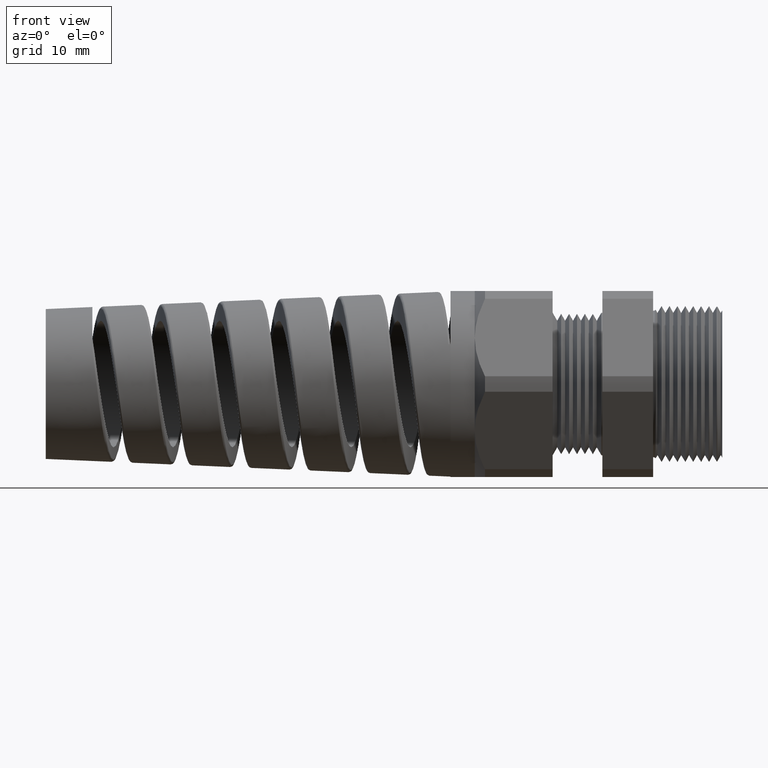
[diagram: clean part render]
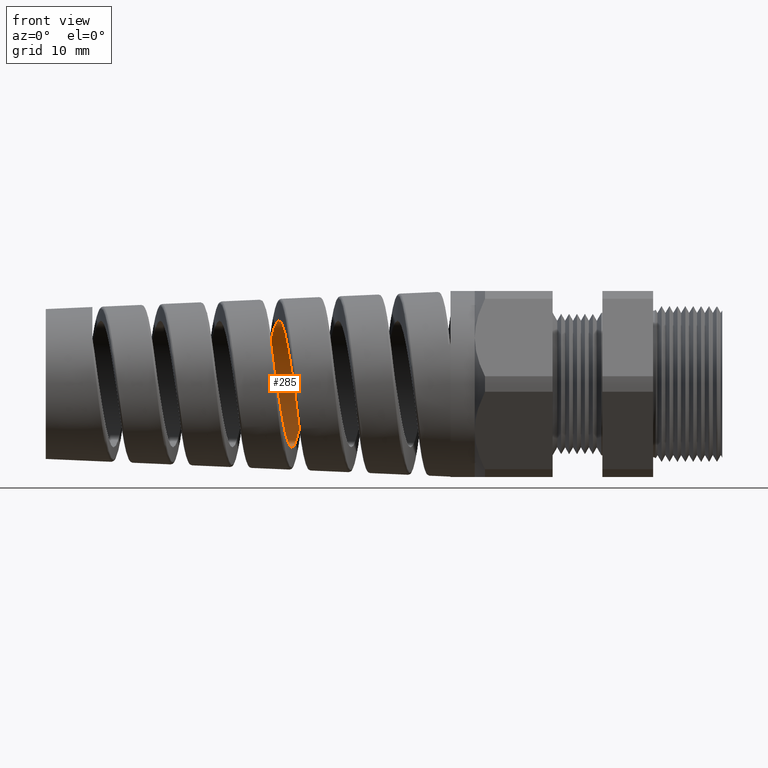
[diagram: same view with one face highlighted and labeled with its STEP entity id]
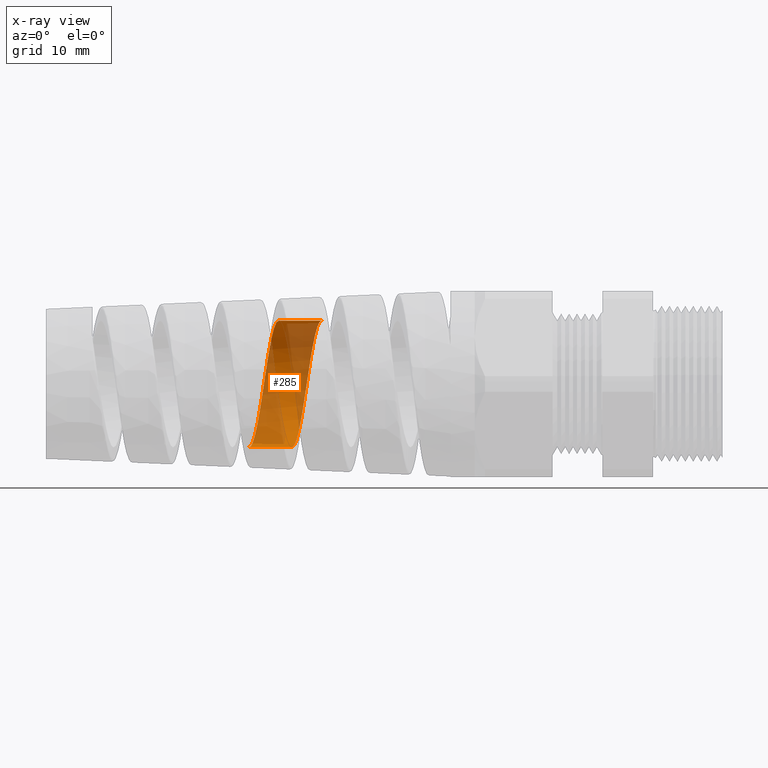
[diagram: x-ray of the same camera — body ghosted, the highlighted face saturated]
A machine part, front view. The second image highlights one B-rep face of the part: STEP entity #285.
The next image is the same camera in x-ray: the body ghosted, the highlighted face saturated — about 62% of this face is hidden behind the body in this view.
In plain terms, the highlighted cylindrical surface (partial cylindrical patch) has radius 8.128 mm, axis along (1, 0, 0).
Its self-contained STEP definition (entity closure, byte-faithful):
#201 = VERTEX_POINT ( 'NONE', #1259 ) ;
#203 = EDGE_CURVE ( 'NONE', #201, #204, #1258, .T. ) ;
#204 = VERTEX_POINT ( 'NONE', #1254 ) ;
#217 = VERTEX_POINT ( 'NONE', #1389 ) ;
#224 = VERTEX_POINT ( 'NONE', #1411 ) ;
#226 = EDGE_CURVE ( 'NONE', #217, #224, #1435, .T. ) ;
#285 = ADVANCED_FACE ( 'NONE', ( #1888 ), #1887, .F. ) ;
#286 = EDGE_LOOP ( 'NONE', ( #287, #288, #290, #291 ) ) ;
#287 = ORIENTED_EDGE ( 'NONE', *, *, #203, .F. ) ;
#288 = ORIENTED_EDGE ( 'NONE', *, *, #289, .T. ) ;
#289 = EDGE_CURVE ( 'NONE', #201, #217, #1882, .T. ) ;
#290 = ORIENTED_EDGE ( 'NONE', *, *, #226, .T. ) ;
#291 = ORIENTED_EDGE ( 'NONE', *, *, #292, .T. ) ;
#292 = EDGE_CURVE ( 'NONE', #224, #204, #1911, .T. ) ;
#1254 = CARTESIAN_POINT ( 'NONE',  ( -1.985614823771644400, 9.003637423056151700E-013, 0.3200000000000002300 ) ) ;
#1255 = DIRECTION ( 'NONE',  ( 1.000000000000000000, 0.0000000000000000000, 0.0000000000000000000 ) ) ;
#1256 = VECTOR ( 'NONE', #1255, 39.37007874015748100 ) ;
#1257 = CARTESIAN_POINT ( 'NONE',  ( 0.09602717987635048200, 3.918869757271530800E-017, 0.3200000000000000100 ) ) ;
#1258 = LINE ( 'NONE', #1257, #1256 ) ;
#1259 = CARTESIAN_POINT ( 'NONE',  ( -2.201809266588028900, 7.363184045423208900E-017, 0.3200000000000000100 ) ) ;
#1389 = CARTESIAN_POINT ( 'NONE',  ( -2.351741287611400100, -5.117743721287113500E-013, -0.3200000000000000100 ) ) ;
#1411 = CARTESIAN_POINT ( 'NONE',  ( -2.135681912372353200, -1.083967404298548900E-013, -0.3200000000000000100 ) ) ;
#1432 = DIRECTION ( 'NONE',  ( 1.000000000000000000, 0.0000000000000000000, 0.0000000000000000000 ) ) ;
#1433 = VECTOR ( 'NONE', #1432, 39.37007874015748100 ) ;
#1434 = CARTESIAN_POINT ( 'NONE',  ( 0.09602717987635048200, 0.0000000000000000000, -0.3200000000000000100 ) ) ;
#1435 = LINE ( 'NONE', #1434, #1433 ) ;
#1854 = CARTESIAN_POINT ( 'NONE',  ( -2.298655364093630000, 0.2875795537211594000, -0.1418951687187309200 ) ) ;
#1855 = CARTESIAN_POINT ( 'NONE',  ( -2.292425290302404900, 0.3035840422943751300, -0.1033100570534418400 ) ) ;
#1856 = CARTESIAN_POINT ( 'NONE',  ( -2.289261081846714100, 0.3097780678982575700, -0.08291527048113712900 ) ) ;
#1857 = CARTESIAN_POINT ( 'NONE',  ( -2.283020582004242600, 0.3179348800569378700, -0.04189039833802199500 ) ) ;
#1858 = CARTESIAN_POINT ( 'NONE',  ( -2.279925628624094100, 0.3199894198162194200, -0.02114087185396790500 ) ) ;
#1859 = CARTESIAN_POINT ( 'NONE',  ( -2.275233406194491400, 0.3200052295214768600, 0.01032929780641382100 ) ) ;
#1860 = CARTESIAN_POINT ( 'NONE',  ( -2.273652853139865200, 0.3194875552303220700, 0.02093102131605997800 ) ) ;
#1861 = CARTESIAN_POINT ( 'NONE',  ( -2.270519575714238200, 0.3174262804275462800, 0.04184449897315324600 ) ) ;
#1862 = CARTESIAN_POINT ( 'NONE',  ( -2.268962465094746400, 0.3158882327454267100, 0.05218583809731744400 ) ) ;
#1863 = CARTESIAN_POINT ( 'NONE',  ( -2.264297029910141900, 0.3097867189094129500, 0.08286819611366919000 ) ) ;
#1864 = CARTESIAN_POINT ( 'NONE',  ( -2.261195866489675400, 0.3037499908555568700, 0.1028709996223729600 ) ) ;
#1865 = CARTESIAN_POINT ( 'NONE',  ( -2.254890700167676800, 0.2875858163432165000, 0.1419186307229001500 ) ) ;
#1866 = CARTESIAN_POINT ( 'NONE',  ( -2.251782680679890600, 0.2776964857477125000, 0.1603727617178398700 ) ) ;
#1867 = CARTESIAN_POINT ( 'NONE',  ( -2.247119168800277800, 0.2603270785069944400, 0.1863826773614502000 ) ) ;
#1868 = CARTESIAN_POINT ( 'NONE',  ( -2.245563309092445600, 0.2541086917027857700, 0.1947792118303845700 ) ) ;
#1869 = CARTESIAN_POINT ( 'NONE',  ( -2.242433471816344800, 0.2407985745365067400, 0.2110123576034201900 ) ) ;
#1870 = CARTESIAN_POINT ( 'NONE',  ( -2.240852405460111600, 0.2336703710576541500, 0.2188799330988615600 ) ) ;
#1871 = CARTESIAN_POINT ( 'NONE',  ( -2.236154492140164600, 0.2113917954102257600, 0.2411526042313809100 ) ) ;
#1872 = CARTESIAN_POINT ( 'NONE',  ( -2.233059210915788700, 0.1952665380311733900, 0.2543772623685123200 ) ) ;
#1873 = CARTESIAN_POINT ( 'NONE',  ( -2.226822947255413100, 0.1605207152457300800, 0.2776146834405158700 ) ) ;
#1874 = CARTESIAN_POINT ( 'NONE',  ( -2.223657548163318500, 0.1417208406693229200, 0.2876663866665757900 ) ) ;
#1875 = CARTESIAN_POINT ( 'NONE',  ( -2.217425045264848700, 0.1031029427696981800, 0.3036552813472077100 ) ) ;
#1876 = CARTESIAN_POINT ( 'NONE',  ( -2.214331126882912700, 0.08314921997831495300, 0.3097215032361424500 ) ) ;
#1877 = CARTESIAN_POINT ( 'NONE',  ( -2.209632753714098700, 0.05224976239391255400, 0.3158801401121068000 ) ) ;
#1878 = CARTESIAN_POINT ( 'NONE',  ( -2.208051307527875400, 0.04174862769024310900, 0.3174384779152250000 ) ) ;
#1879 = CARTESIAN_POINT ( 'NONE',  ( -2.204920719770604900, 0.02086024029718662100, 0.3194917613177169500 ) ) ;
#1880 = CARTESIAN_POINT ( 'NONE',  ( -2.203364531460962000, 0.01042508809175944800, 0.3199999999999999500 ) ) ;
#1881 = CARTESIAN_POINT ( 'NONE',  ( -2.201809266588028900, 7.363184045423208900E-017, 0.3200000000000000100 ) ) ;
#1882 = B_SPLINE_CURVE_WITH_KNOTS ( 'NONE', 3,
 ( #1881, #1880, #1879, #1878, #1877, #1876, #1875, #1874, #1873, #1872, #1871, #1870, #1869, #1868, #1867, #1866, #1865, #1864, #1863, #1862, #1861, #1860, #1859, #1858, #1857, #1856, #1855, #1854, #1928, #1927, #1926, #1925, #1924, #1923, #1922, #1921, #1920, #1919, #1918, #1917, #1916, #1915, #1914, #1913 ),
 .UNSPECIFIED., .F., .F.,
 ( 4, 2, 2, 2, 2, 2, 2, 2, 2, 2, 2, 2, 2, 2, 2, 2, 2, 2, 2, 2, 2, 4 ),
 ( 0.1633829228098012700, 0.1641859449577393900, 0.1649889671056774800, 0.1665950114015536900, 0.1682010556974299100, 0.1698070999933061200, 0.1706101221412442400, 0.1714131442891823300, 0.1730191885850585500, 0.1746252328809347600, 0.1754282550288728800, 0.1762312771768109700, 0.1778373214726871900, 0.1794433657685634300, 0.1810494100644396400, 0.1818524322123777300, 0.1826554543603158600, 0.1842614986561920700, 0.1858675429520683100, 0.1866705651000064000, 0.1874735872479445200, 0.1890796315438207400 ),
 .UNSPECIFIED. ) ;
#1883 = DIRECTION ( 'NONE',  ( 0.0000000000000000000, 0.0000000000000000000, -1.000000000000000000 ) ) ;
#1884 = DIRECTION ( 'NONE',  ( 1.000000000000000000, 0.0000000000000000000, 0.0000000000000000000 ) ) ;
#1885 = AXIS2_PLACEMENT_3D ( 'NONE', #1886, #1884, #1883 ) ;
#1886 = CARTESIAN_POINT ( 'NONE',  ( 0.09602717987635048200, 0.0000000000000000000, 0.0000000000000000000 ) ) ;
#1887 = CYLINDRICAL_SURFACE ( 'NONE', #1885, 0.3200000000000000100 ) ;
#1888 = FACE_OUTER_BOUND ( 'NONE', #286, .T. ) ;
#1889 = CARTESIAN_POINT ( 'NONE',  ( -2.063770418911238500, 0.3199963314313072300, -0.02090190363965120600 ) ) ;
#1890 = CARTESIAN_POINT ( 'NONE',  ( -2.066882439297139700, 0.3179671308293216500, -0.04174918655452319200 ) ) ;
#1891 = CARTESIAN_POINT ( 'NONE',  ( -2.073186483491368900, 0.3097215774056512600, -0.08317833465001839300 ) ) ;
#1892 = CARTESIAN_POINT ( 'NONE',  ( -2.076288022793374200, 0.3036330666644499500, -0.1031589709957424100 ) ) ;
#1893 = CARTESIAN_POINT ( 'NONE',  ( -2.080956745229749900, 0.2916667203992070500, -0.1320576666794113000 ) ) ;
#1894 = CARTESIAN_POINT ( 'NONE',  ( -2.082515558892438900, 0.2872022839736306200, -0.1415106014864909400 ) ) ;
#1895 = CARTESIAN_POINT ( 'NONE',  ( -2.085652661550033500, 0.2773006235330281500, -0.1600461384755413300 ) ) ;
#1896 = CARTESIAN_POINT ( 'NONE',  ( -2.087235074986757400, 0.2718443665966413500, -0.1691466688886029700 ) ) ;
#1897 = CARTESIAN_POINT ( 'NONE',  ( -2.091932964524320300, 0.2543593342638257900, -0.1952975935812397400 ) ) ;
#1898 = CARTESIAN_POINT ( 'NONE',  ( -2.095030592757710900, 0.2411303359184258600, -0.2114083500046722300 ) ) ;
#1899 = CARTESIAN_POINT ( 'NONE',  ( -2.101272726351144400, 0.2115653381395301600, -0.2409926078736382700 ) ) ;
#1900 = CARTESIAN_POINT ( 'NONE',  ( -2.104437139312045300, 0.1950919132531930800, -0.2545095903860410400 ) ) ;
#1901 = CARTESIAN_POINT ( 'NONE',  ( -2.110670191278321000, 0.1603645425639217400, -0.2777034384078202500 ) ) ;
#1902 = CARTESIAN_POINT ( 'NONE',  ( -2.113768564017538800, 0.1419773809911877800, -0.2875492769184980800 ) ) ;
#1903 = CARTESIAN_POINT ( 'NONE',  ( -2.118478825024947600, 0.1128406626872524000, -0.2996289800514441200 ) ) ;
#1904 = CARTESIAN_POINT ( 'NONE',  ( -2.120060837310267400, 0.1028546498180311500, -0.3032008593158214700 ) ) ;
#1905 = CARTESIAN_POINT ( 'NONE',  ( -2.123190581636369400, 0.08279498008533410500, -0.3092811525969721400 ) ) ;
#1906 = CARTESIAN_POINT ( 'NONE',  ( -2.126303463727308200, 0.06254132177107259200, -0.3143467731167716700 ) ) ;
#1907 = CARTESIAN_POINT ( 'NONE',  ( -2.129412319125382900, 0.04191044142077433200, -0.3174160311788278300 ) ) ;
#1908 = CARTESIAN_POINT ( 'NONE',  ( -2.132534274175133900, 0.02109106521393955300, -0.3194754903236617900 ) ) ;
#1909 = CARTESIAN_POINT ( 'NONE',  ( -2.134108208073246100, 0.01054412572075463300, -0.3200000000000035600 ) ) ;
#1910 = CARTESIAN_POINT ( 'NONE',  ( -2.135681912372353200, -1.083967404298548900E-013, -0.3200000000000000100 ) ) ;
#1911 = B_SPLINE_CURVE_WITH_KNOTS ( 'NONE', 3,
 ( #1910, #1909, #1908, #1907, #1906, #1905, #1904, #1903, #1902, #1901, #1900, #1899, #1898, #1897, #1896, #1895, #1894, #1893, #1892, #1891, #1890, #1889, #1965, #1964, #1963, #1962, #1961, #1960, #1959, #1958, #1957, #1956, #1955, #1954, #1953, #1952, #1951, #1950, #1949, #1948, #1947, #1946, #1945, #1944, #1943 ),
 .UNSPECIFIED., .F., .F.,
 ( 4, 2, 1, 2, 2, 2, 2, 2, 2, 2, 2, 2, 2, 2, 2, 2, 2, 2, 2, 2, 2, 2, 4 ),
 ( 0.1730304687975824900, 0.1738353071743294900, 0.1746401455510764900, 0.1754449839278234800, 0.1762498223045704800, 0.1778594990580644700, 0.1794691758115584700, 0.1810788525650524600, 0.1818836909417994900, 0.1826885293185464800, 0.1842982060720404800, 0.1859078828255344700, 0.1867127212022814700, 0.1875175595790284600, 0.1891272363325224600, 0.1907369130860164500, 0.1923465898395104500, 0.1931514282162574400, 0.1939562665930044700, 0.1955659433464984600, 0.1971756200999924500, 0.1979804584767394500, 0.1987852968534864500 ),
 .UNSPECIFIED. ) ;
#1913 = CARTESIAN_POINT ( 'NONE',  ( -2.351741287611400100, -5.117743721287113500E-013, -0.3200000000000000100 ) ) ;
#1914 = CARTESIAN_POINT ( 'NONE',  ( -2.348619250752285800, 0.02093189766154120900, -0.3200000000000333100 ) ) ;
#1915 = CARTESIAN_POINT ( 'NONE',  ( -2.345524028537717200, 0.04168103989632274800, -0.3179652452792390800 ) ) ;
#1916 = CARTESIAN_POINT ( 'NONE',  ( -2.340834297455542900, 0.07251660494112856200, -0.3118511561320457800 ) ) ;
#1917 = CARTESIAN_POINT ( 'NONE',  ( -2.339254746952772500, 0.08280270712892109900, -0.3092804688178723000 ) ) ;
#1918 = CARTESIAN_POINT ( 'NONE',  ( -2.336116720103179800, 0.1029395225488744000, -0.3031734675025019600 ) ) ;
#1919 = CARTESIAN_POINT ( 'NONE',  ( -2.334558474174079500, 0.1127903589210698100, -0.2996450369841617800 ) ) ;
#1920 = CARTESIAN_POINT ( 'NONE',  ( -2.329892727066429400, 0.1417035563407288400, -0.2876723051312436400 ) ) ;
#1921 = CARTESIAN_POINT ( 'NONE',  ( -2.326794388087358700, 0.1601326427490784300, -0.2778535735437045500 ) ) ;
#1922 = CARTESIAN_POINT ( 'NONE',  ( -2.320501315189586100, 0.1952243626378533400, -0.2544258631457398400 ) ) ;
#1923 = CARTESIAN_POINT ( 'NONE',  ( -2.317381682904244400, 0.2114580779874971600, -0.2410810927895177300 ) ) ;
#1924 = CARTESIAN_POINT ( 'NONE',  ( -2.312716340323349100, 0.2335768924435379100, -0.2189759994339755300 ) ) ;
#1925 = CARTESIAN_POINT ( 'NONE',  ( -2.311160609367200800, 0.2405946521076466100, -0.2112442475324731500 ) ) ;
#1926 = CARTESIAN_POINT ( 'NONE',  ( -2.308033410104287000, 0.2539059043133616300, -0.1950428427119907400 ) ) ;
#1927 = CARTESIAN_POINT ( 'NONE',  ( -2.306453330615148500, 0.2602296240352389700, -0.1865237023217629600 ) ) ;
#1928 = CARTESIAN_POINT ( 'NONE',  ( -2.301750442129632200, 0.2777536783459467200, -0.1602968782561105000 ) ) ;
#1943 = CARTESIAN_POINT ( 'NONE',  ( -1.985614823771644400, 9.003637423056151700E-013, 0.3200000000000002300 ) ) ;
#1944 = CARTESIAN_POINT ( 'NONE',  ( -1.987180036012706100, 0.01048885162342109100, 0.3199999999999705900 ) ) ;
#1945 = CARTESIAN_POINT ( 'NONE',  ( -1.988761804341871600, 0.02108862055301532000, 0.3194770863174211100 ) ) ;
#1946 = CARTESIAN_POINT ( 'NONE',  ( -1.991897219436636400, 0.04199475289771603700, 0.3174063315810791200 ) ) ;
#1947 = CARTESIAN_POINT ( 'NONE',  ( -1.993455541034271600, 0.05233262510439939300, 0.3158638693836083300 ) ) ;
#1948 = CARTESIAN_POINT ( 'NONE',  ( -1.998124497964898900, 0.08300518426246990300, 0.3097497214119240800 ) ) ;
#1949 = CARTESIAN_POINT ( 'NONE',  ( -2.001228836880684100, 0.1030021130241900000, 0.3037054246750485200 ) ) ;
#1950 = CARTESIAN_POINT ( 'NONE',  ( -2.007539030961210400, 0.1420393904410247300, 0.2875260541718640500 ) ) ;
#1951 = CARTESIAN_POINT ( 'NONE',  ( -2.010647482941164900, 0.1604807390435736300, 0.2776338028447742900 ) ) ;
#1952 = CARTESIAN_POINT ( 'NONE',  ( -2.015313916021087800, 0.1864791746652725000, 0.2602578844870304700 ) ) ;
#1953 = CARTESIAN_POINT ( 'NONE',  ( -2.016870919574598600, 0.1948720795515987100, 0.2540374226437491800 ) ) ;
#1954 = CARTESIAN_POINT ( 'NONE',  ( -2.020003364116714600, 0.2110982742363634600, 0.2407231981066065000 ) ) ;
#1955 = CARTESIAN_POINT ( 'NONE',  ( -2.021585750041917900, 0.2189617220273634400, 0.2335935994014991500 ) ) ;
#1956 = CARTESIAN_POINT ( 'NONE',  ( -2.026287048001489000, 0.2412205284923749400, 0.2113136962243703000 ) ) ;
#1957 = CARTESIAN_POINT ( 'NONE',  ( -2.029385110730510100, 0.2544372670750122400, 0.1951879730677214000 ) ) ;
#1958 = CARTESIAN_POINT ( 'NONE',  ( -2.035626282843576700, 0.2776605008112584300, 0.1604409984889393100 ) ) ;
#1959 = CARTESIAN_POINT ( 'NONE',  ( -2.038792965321696300, 0.2877048193704511100, 0.1416420653488865400 ) ) ;
#1960 = CARTESIAN_POINT ( 'NONE',  ( -2.045028911839623200, 0.3036799365938354100, 0.1030292864948907800 ) ) ;
#1961 = CARTESIAN_POINT ( 'NONE',  ( -2.048125271540103500, 0.3097403914206995900, 0.08307804219598133300 ) ) ;
#1962 = CARTESIAN_POINT ( 'NONE',  ( -2.052827698422797100, 0.3158913182312271300, 0.05218182498992275000 ) ) ;
#1963 = CARTESIAN_POINT ( 'NONE',  ( -2.054410380066190800, 0.3174470531429126600, 0.04168269580640444200 ) ) ;
#1964 = CARTESIAN_POINT ( 'NONE',  ( -2.057542743396161300, 0.3194956487063763700, 0.02079925807571415100 ) ) ;
#1965 = CARTESIAN_POINT ( 'NONE',  ( -2.059100826680943200, 0.3200018268712066000, 0.01036659179307975800 ) ) ;